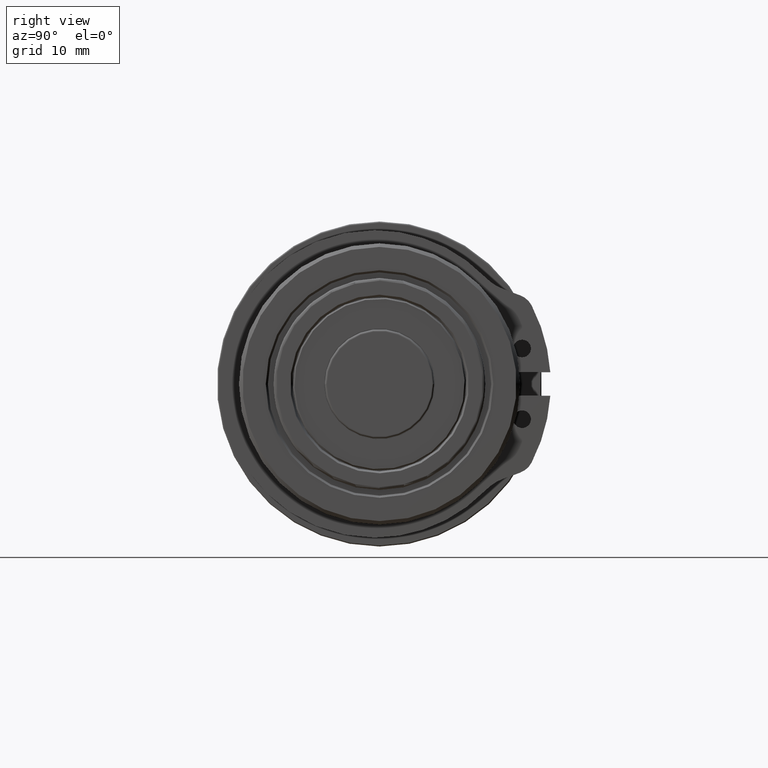
[diagram: clean part render]
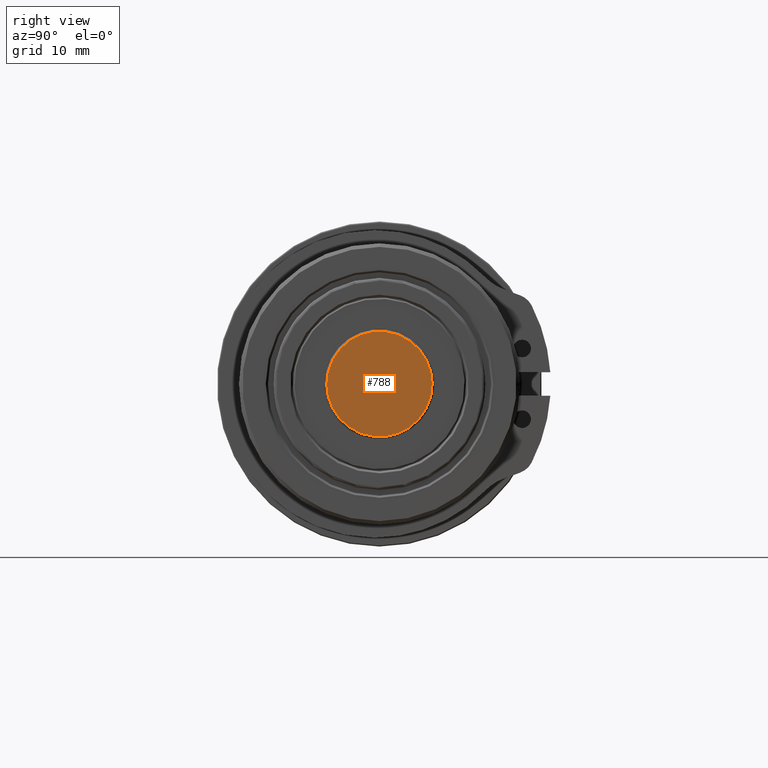
[diagram: same view with one face highlighted and labeled with its STEP entity id]
A machine part, right view. The second image highlights one B-rep face of the part: STEP entity #788.
In plain terms, the highlighted planar face has unit normal (1, -0, -0).
Its self-contained STEP definition (entity closure, byte-faithful):
#376 = EDGE_LOOP ( 'NONE', ( #1344, #1099 ) ) ;
#788 = ADVANCED_FACE ( 'NONE', ( #3203 ), #3926, .T. ) ;
#884 = VERTEX_POINT ( 'NONE', #4248 ) ;
#914 = VERTEX_POINT ( 'NONE', #3972 ) ;
#1099 = ORIENTED_EDGE ( 'NONE', *, *, #2024, .T. ) ;
#1344 = ORIENTED_EDGE ( 'NONE', *, *, #2029, .T. ) ;
#1401 = CARTESIAN_POINT ( 'NONE',  ( 53.00000000000000000, -6.987466161234561600E-015, -6.246800537028638200E-015 ) ) ;
#1468 = DIRECTION ( 'NONE',  ( 0.0000000000000000000, -1.000000000000000000, 1.663326784856592600E-016 ) ) ;
#1497 = DIRECTION ( 'NONE',  ( 1.000000000000000000, -1.318389841742369700E-016, -1.040834085586084000E-016 ) ) ;
#1583 = CARTESIAN_POINT ( 'NONE',  ( 53.00000000000000000, -6.987466161234561600E-015, -6.246800537028638200E-015 ) ) ;
#1705 = DIRECTION ( 'NONE',  ( 0.0000000000000000000, -1.000000000000000000, 1.663326784856592600E-016 ) ) ;
#1707 = DIRECTION ( 'NONE',  ( 1.000000000000000000, -1.318389841742369700E-016, -1.040834085586084000E-016 ) ) ;
#1798 = CIRCLE ( 'NONE', #2903, 7.455000000000000100 ) ;
#1818 = CIRCLE ( 'NONE', #2804, 7.455000000000000100 ) ;
#2024 = EDGE_CURVE ( 'NONE', #914, #884, #1818, .T. ) ;
#2029 = EDGE_CURVE ( 'NONE', #884, #914, #1798, .T. ) ;
#2804 = AXIS2_PLACEMENT_3D ( 'NONE', #1583, #1497, #1705 ) ;
#2843 = AXIS2_PLACEMENT_3D ( 'NONE', #3927, #3924, #3925 ) ;
#2903 = AXIS2_PLACEMENT_3D ( 'NONE', #1401, #1707, #1468 ) ;
#3203 = FACE_OUTER_BOUND ( 'NONE', #376, .T. ) ;
#3924 = DIRECTION ( 'NONE',  ( 1.000000000000000000, -1.260542873745705100E-016, -1.040834085586084000E-016 ) ) ;
#3925 = DIRECTION ( 'NONE',  ( -1.260542873745704900E-016, -1.000000000000000000, 1.663326784856592600E-016 ) ) ;
#3926 = PLANE ( 'NONE',  #2843 ) ;
#3927 = CARTESIAN_POINT ( 'NONE',  ( 53.00000000000000000, -6.987466161234561600E-015, -6.246800537028638200E-015 ) ) ;
#3972 = CARTESIAN_POINT ( 'NONE',  ( 53.00000000000000000, 7.454999999999993000, -8.427491936379846700E-015 ) ) ;
#4248 = CARTESIAN_POINT ( 'NONE',  ( 53.00000000000000000, -7.455000000000007200, -5.006790418918048300E-015 ) ) ;